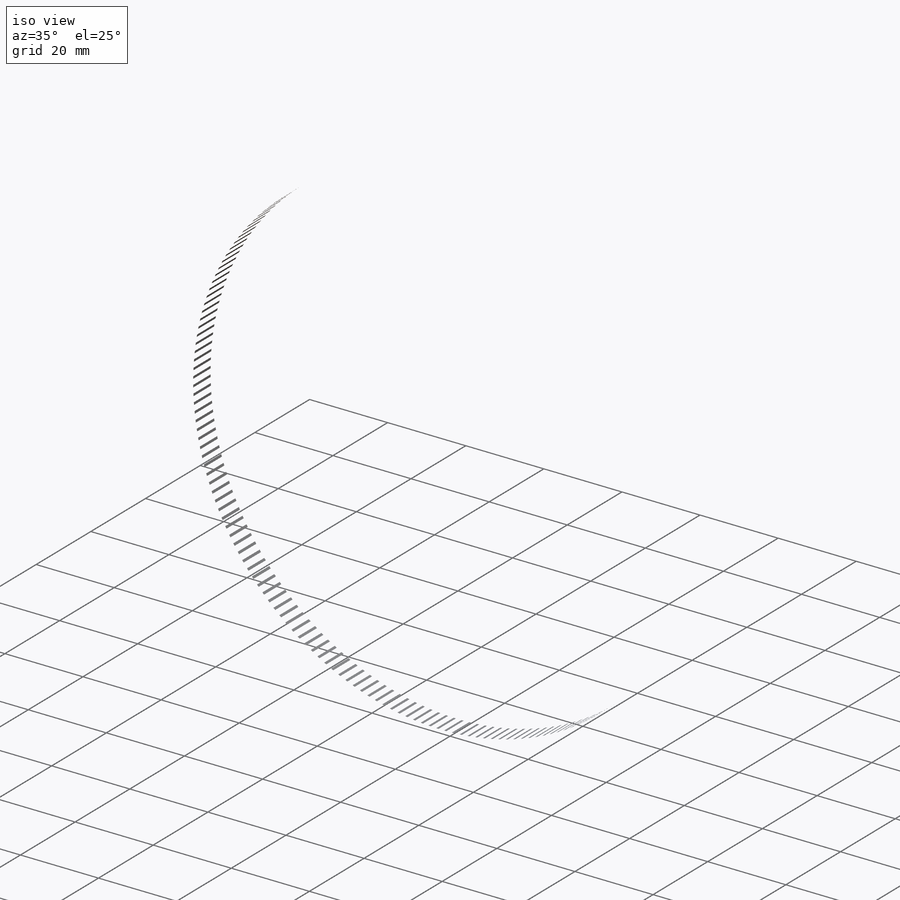
[diagram: iso view]
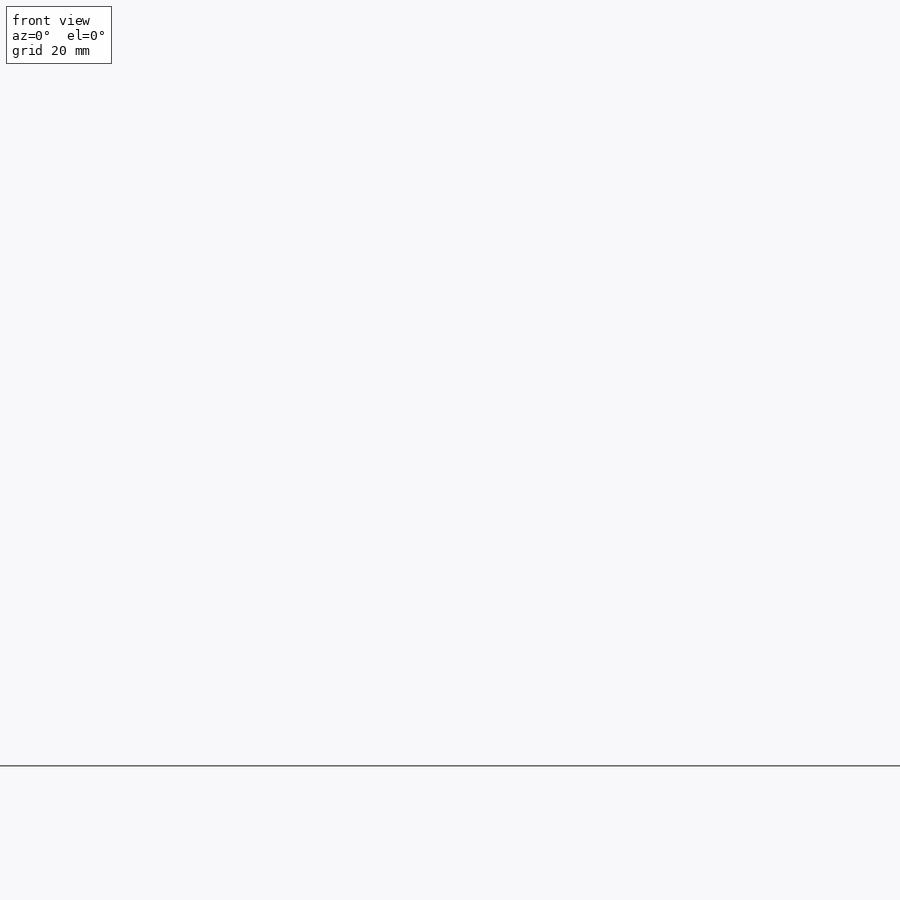
[diagram: front view]
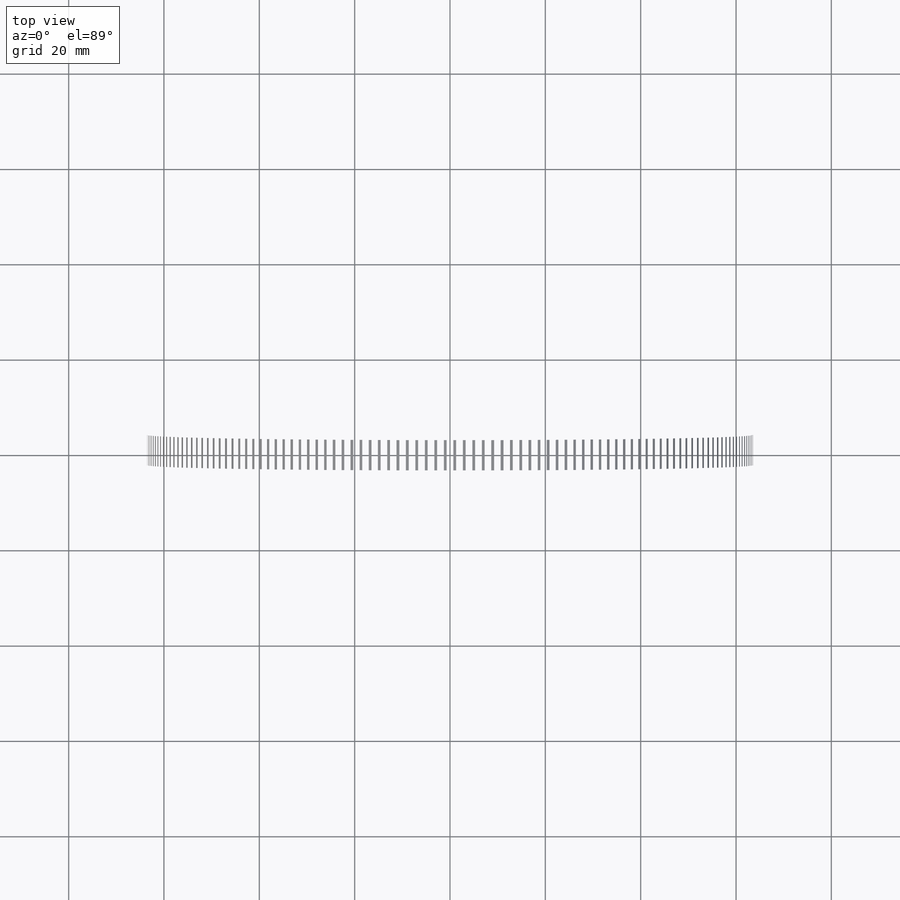
[diagram: top view]
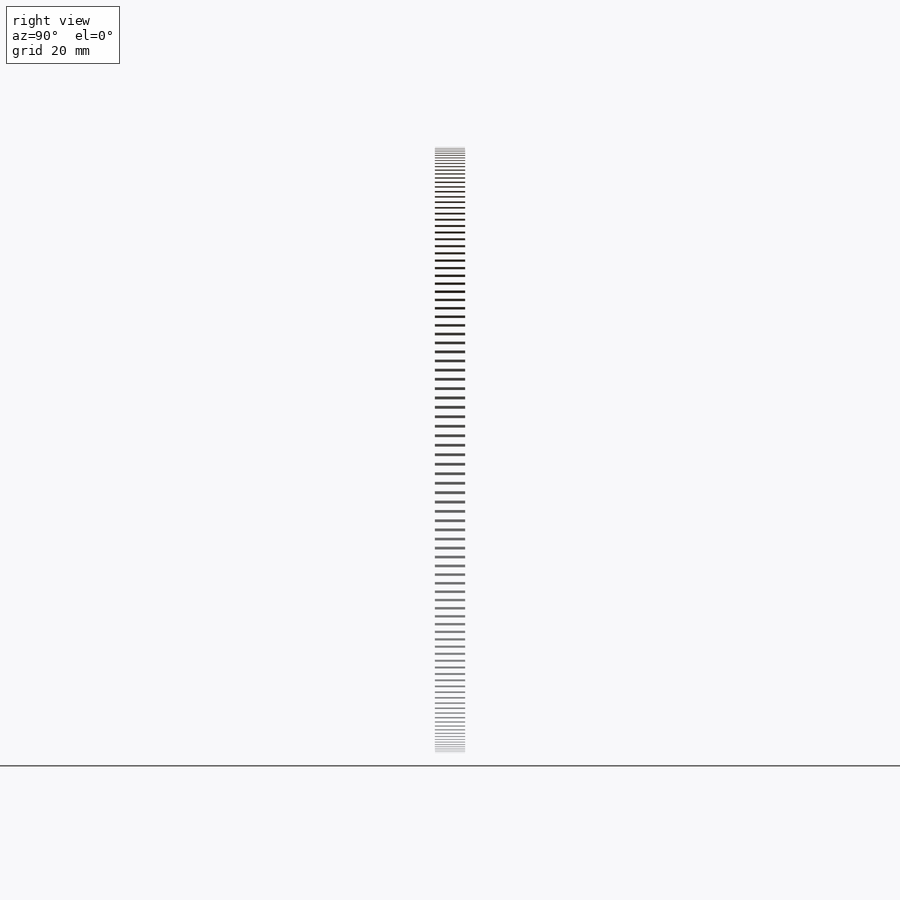
[diagram: right view]
SOLIDWORKS PART (.sldprt)
format: sldprt  version: not decoded by parser v0  size: 3,363,840 bytes
history: native  units: mm
features: sketch x3, material x1, extrude x1, cut_extrude x1, pattern_circular x1 (+15 scaffold rows collapsed)
feature tree (22):
  scaffold x15  (default folders/planes/origin — collapsed)
  material  "Material <not specified>"
  sketch  "Sketch1"  dims[c1.OD=~129.361247mm c1.D3=2.032mm c1.D5=~39.44473mm c2.D5=~2.948018deg c2.D3=39.497mm c3.D3=9.0deg c3.D2=~1.851368mm c3.D1=~159.911753mm c3.Angle Distance=1.8deg c3.hs=1.143mm c3.ht=0.508mm]
  extrude  "Boss-Extrude1"  Depth=6.35mm Width=6.35mm
  sketch  "Sketch2"  dims[c1.bt=1.143mm c1.D2=39.497mm c2.D2=~28.381659deg c3.D2=~0.647429mm c3.b=40.0deg c3.D3=11.7983mm c4.D3=~35.895333deg c5.D3=~0.539474mm c5.b=40.0deg c5.Pitch=2.032mm c5.bt=1.143mm c5.D1=~161.054753mm c6.D1=22.5deg]
  sketch  "Sketch3"  dims[c1.ra=0.127mm c1.rr=0.127mm c2.ra=0.127mm c2.D1=~1.764114mm]
  cut_extrude  "Cut-Extrude1"  Depth=6.35mm
  pattern_circular  "CirPattern1"  Count=200 Angle=360deg teeth=200
decode coverage: 6 of 6 modeling features carry decoded parameters
note: ~ marks probable driven/reference dimensions
note: suppression state not decoded; provenance and decode notes live in map.json
